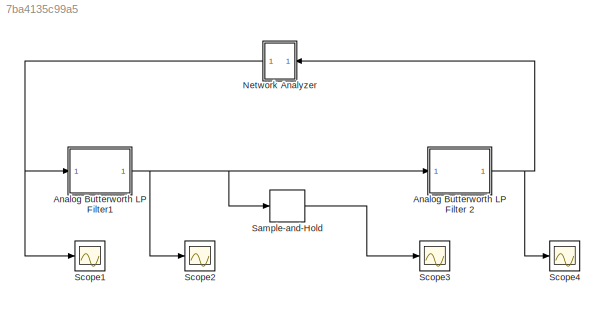
MODEL slx_7ba4135c99a5
KIND model
CONFIG AbsTol = 1e-6
CONFIG EnableMultiTasking = off
CONFIG FixedStep = auto
CONFIG MaxStep = .005
CONFIG MinStep = auto
CONFIG RelTol = 1e-6
CONFIG SampleTimeConstraint = Unconstrained
CONFIG SolverName = ode45
CONFIG StartTime = 0.0
CONFIG StopTime = 9999.0
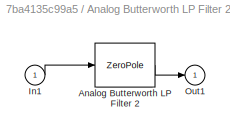
BLOCK [SubSystem] Analog Butterworth LP Filter 2
BLOCK [ZeroPole] Analog Butterworth LP Filter 2/Analog Butterworth LP Filter 2
  Gain = k
  Poles = p
  Zeros = z
BLOCK [Inport] Analog Butterworth LP Filter 2/In1
BLOCK [Outport] Analog Butterworth LP Filter 2/Out1
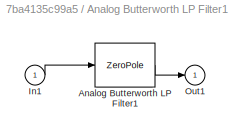
BLOCK [SubSystem] Analog Butterworth LP Filter1
BLOCK [ZeroPole] Analog Butterworth LP Filter1/Analog Butterworth LP Filter1
  Gain = k
  Poles = p
  Zeros = z
BLOCK [Inport] Analog Butterworth LP Filter1/In1
BLOCK [Outport] Analog Butterworth LP Filter1/Out1
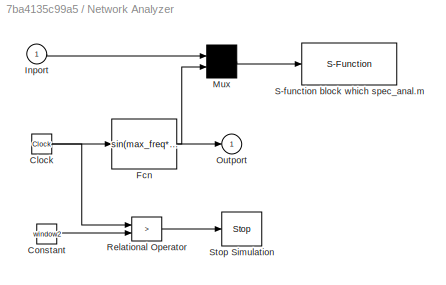
BLOCK [SubSystem] Network Analyzer
  ShowPortLabels = none
BLOCK [Clock] Network Analyzer/Clock
BLOCK [Constant] Network Analyzer/Constant
  Value = window2
BLOCK [Fcn] Network Analyzer/Fcn
  Expr = sin(max_freq*u*u/(2*window1))*(0.54+0.46*cos(pi*u/window1))*(u<window1)
BLOCK [Inport] Network Analyzer/Inport
BLOCK [Mux] Network Analyzer/Mux
  Inputs = 2
BLOCK [Outport] Network Analyzer/Outport
  InitialOutput = 0
BLOCK [RelationalOperator] Network Analyzer/Relational Operator
  Operator = >
BLOCK [S-Function] Network Analyzer/S-function block which spec_anal.m
  EnableBusSupport = off
  FunctionName = NetAnal
  Parameters = N,T_s
  SFcnIsStateOwnerBlock = off
  SFunctionDeploymentMode = off
BLOCK [Stop] Network Analyzer/Stop Simulation
BLOCK [ZeroOrderHold] Sample-and-Hold
BLOCK [Scope] Scope1
  Floating = off
  NumInputPorts = 1
  ScopeSpecificationString = Simulink.scopes.TimeScopeBlockCfg('CurrentConfiguration', extmgr.ConfigurationSet(extmgr.Configuration('Core','General UI',true),extmgr.Configuration('Core','Source UI',true),extmgr.Configuration('Sources','WiredSimulink',true,'DataLoggingSaveFormat','Array','DataLoggingDecimation','1','DataLoggingDecimateData',true),extmgr.Configuration('Visuals','Time Domain',true,'TimeAxisLabels','All','Seriali...<+1748ch>
BLOCK [Scope] Scope2
  Floating = off
  NumInputPorts = 1
  ScopeSpecificationString = Simulink.scopes.TimeScopeBlockCfg('CurrentConfiguration', extmgr.ConfigurationSet(extmgr.Configuration('Core','General UI',true),extmgr.Configuration('Core','Source UI',true),extmgr.Configuration('Sources','WiredSimulink',true,'DataLoggingSaveFormat','Array','DataLoggingDecimation','1','DataLoggingDecimateData',true),extmgr.Configuration('Visuals','Time Domain',true,'TimeAxisLabels','All','Seriali...<+1761ch>
BLOCK [Scope] Scope3
  Floating = off
  NumInputPorts = 1
  ScopeSpecificationString = Simulink.scopes.TimeScopeBlockCfg('CurrentConfiguration', extmgr.ConfigurationSet(extmgr.Configuration('Core','General UI',true),extmgr.Configuration('Core','Source UI',true),extmgr.Configuration('Sources','WiredSimulink',true,'DataLoggingSaveFormat','Array','DataLoggingDecimation','1','DataLoggingDecimateData',true),extmgr.Configuration('Visuals','Time Domain',true,'TimeAxisLabels','All','Seriali...<+1782ch>
BLOCK [Scope] Scope4
  Floating = off
  NumInputPorts = 1
  ScopeSpecificationString = Simulink.scopes.TimeScopeBlockCfg('CurrentConfiguration', extmgr.ConfigurationSet(extmgr.Configuration('Core','General UI',true),extmgr.Configuration('Core','Source UI',true),extmgr.Configuration('Sources','WiredSimulink',true,'DataLoggingSaveFormat','Array','DataLoggingDecimation','1','DataLoggingDecimateData',true),extmgr.Configuration('Visuals','Time Domain',true,'TimeAxisLabels','All','Seriali...<+1762ch>
LINE Analog Butterworth LP Filter 2/Analog Butterworth LP Filter 2:1 -> Analog Butterworth LP Filter 2/Out1:1
LINE Analog Butterworth LP Filter 2/In1:1 -> Analog Butterworth LP Filter 2/Analog Butterworth LP Filter 2:1
NET Analog Butterworth LP Filter 2:1 -> Network Analyzer:1, Scope4:1
LINE Analog Butterworth LP Filter1/Analog Butterworth LP Filter1:1 -> Analog Butterworth LP Filter1/Out1:1
LINE Analog Butterworth LP Filter1/In1:1 -> Analog Butterworth LP Filter1/Analog Butterworth LP Filter1:1
NET Analog Butterworth LP Filter1:1 -> Analog Butterworth LP Filter 2:1, Sample-and-Hold:1, Scope2:1
NET Network Analyzer/Clock:1 -> Network Analyzer/Fcn:1, Network Analyzer/Relational Operator:1
LINE Network Analyzer/Constant:1 -> Network Analyzer/Relational Operator:2
NET Network Analyzer/Fcn:1 -> Network Analyzer/Mux:2, Network Analyzer/Outport:1
LINE Network Analyzer/Inport:1 -> Network Analyzer/Mux:1
LINE Network Analyzer/Mux:1 -> Network Analyzer/S-function block which spec_anal.m:1
LINE Network Analyzer/Relational Operator:1 -> Network Analyzer/Stop Simulation:1
NET Network Analyzer:1 -> Analog Butterworth LP Filter1:1, Scope1:1
LINE Sample-and-Hold:1 -> Scope3:1
note: NET lines group one-source signal fan-out (src -> all destinations, sorted); 1:1 wires keep LINE
